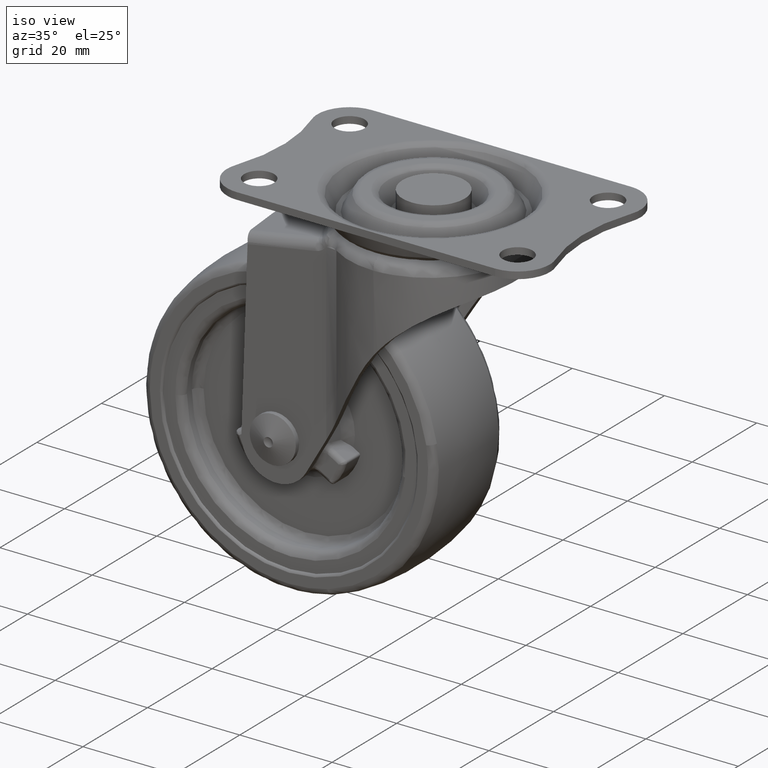
[diagram: clean part render]
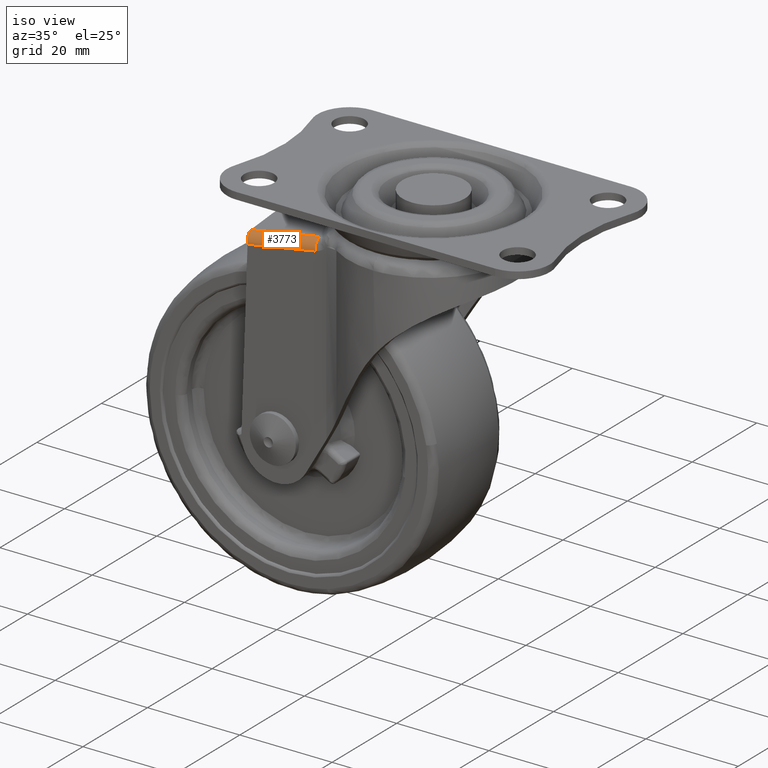
[diagram: same view with one face highlighted and labeled with its STEP entity id]
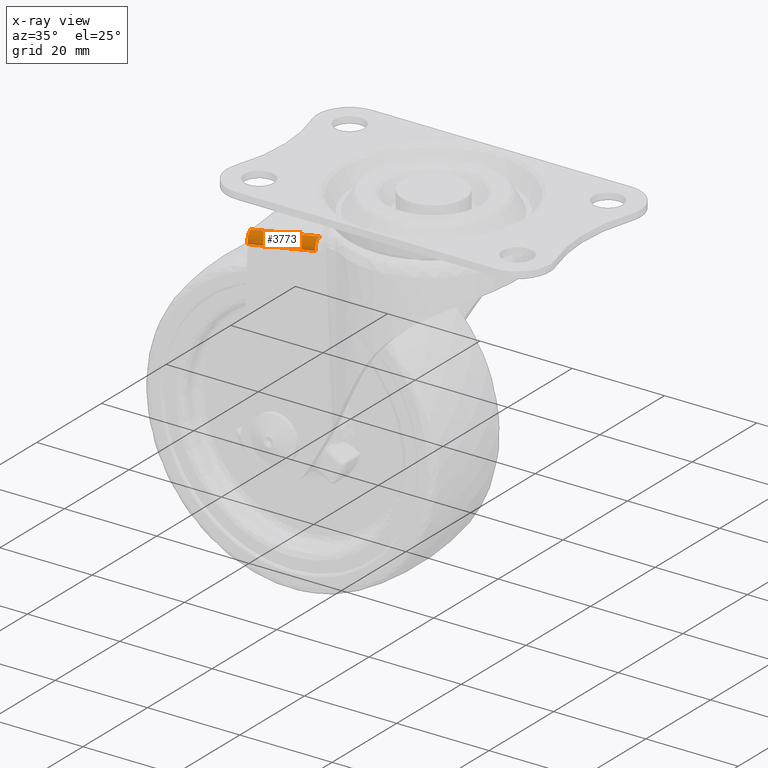
[diagram: x-ray of the same camera — body ghosted, the highlighted face saturated]
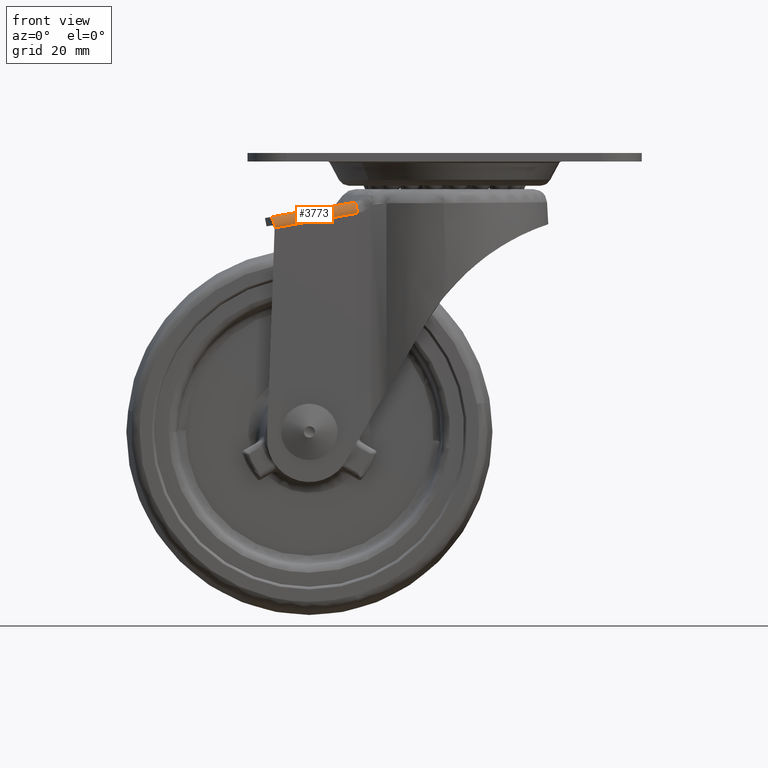
[diagram: same view with one face highlighted and labeled with its STEP entity id]
A machine part, iso view. The second image highlights one B-rep face of the part: STEP entity #3773.
The next image is the same camera in x-ray: the body ghosted, the highlighted face saturated — about 0% of this face is hidden behind the body in this view.
A second angle (front view) of the same face is appended — the face is thin or edge-on in the first view.
In plain terms, the highlighted face is a freeform B-spline surface patch.
Its self-contained STEP definition (entity closure, byte-faithful):
#3134=CARTESIAN_POINT('',(-30.212149457391099,-14.436506996430680,-11.270600476209360));
#3135=VERTEX_POINT('',#3134);
#3136=CARTESIAN_POINT('',(-30.153724038603251,-14.460125256013800,-11.364427591650800));
#3137=VERTEX_POINT('',#3136);
#3138=CARTESIAN_POINT('',(-30.212149457391099,-14.436506996430680,-11.270600476209360));
#3139=CARTESIAN_POINT('',(-30.194367742909080,-14.439559627778470,-11.278975848016231));
#3140=CARTESIAN_POINT('',(-30.164153118245650,-14.447379064873241,-11.306052982157780));
#3141=CARTESIAN_POINT('',(-30.153294869425910,-14.456163071555791,-11.344935441632201));
#3142=CARTESIAN_POINT('',(-30.153724038603251,-14.460125256013800,-11.364427591650800));
#3143=B_SPLINE_CURVE_WITH_KNOTS('',3,(#3138,#3139,#3140,#3141,#3142),.UNSPECIFIED.,.F.,.U.,(4,1,4),(0.000000941596830,0.059665452630520,0.119329963664213),.UNSPECIFIED.);
#3144=EDGE_CURVE('',#3135,#3137,#3143,.T.);
#3666=CARTESIAN_POINT('',(-15.797396065596800,-12.500016534822960,-7.205750666581940));
#3667=VERTEX_POINT('',#3666);
#3668=CARTESIAN_POINT('',(-15.450099921824901,-14.500014999999960,-9.175366209909820));
#3669=VERTEX_POINT('',#3668);
#3670=CARTESIAN_POINT('',(-15.797396065596800,-12.500016534822960,-7.205750666581940));
#3671=CARTESIAN_POINT('',(-15.797404461915059,-12.696359648721019,-7.205703048665032));
#3672=CARTESIAN_POINT('',(-15.786449024172541,-13.121821757403611,-7.267834462585011));
#3673=CARTESIAN_POINT('',(-15.741073600604659,-13.640876049066300,-7.525171438958900));
#3674=CARTESIAN_POINT('',(-15.672962304463010,-14.063000364738951,-7.911450037101370));
#3675=CARTESIAN_POINT('',(-15.580764817492010,-14.399422741320899,-8.434328297199675));
#3676=CARTESIAN_POINT('',(-15.498409410100169,-14.500310354058429,-8.901389315251729));
#3677=CARTESIAN_POINT('',(-15.450099921824901,-14.500014999999960,-9.175366209909820));
#3678=B_SPLINE_CURVE_WITH_KNOTS('',3,(#3670,#3671,#3672,#3673,#3674,#3675,#3676,#3677),.UNSPECIFIED.,.F.,.U.,(4,1,1,1,1,4),(0.000000246874779,0.589062248764040,1.276336336081664,1.718066658476741,2.307162342692105,3.141670623619144),.UNSPECIFIED.);
#3679=EDGE_CURVE('',#3667,#3669,#3678,.T.);
#3711=CARTESIAN_POINT('',(-15.420665533987970,-12.431001818042750,-7.140532341481911));
#3712=CARTESIAN_POINT('',(-31.244074546856829,-12.431001818081709,-9.930624867015578));
#3713=CARTESIAN_POINT('',(-15.433743783141539,-14.612319006819027,-7.066361867305773));
#3714=CARTESIAN_POINT('',(-31.257152796010409,-14.612319006857986,-9.856454392839437));
#3715=CARTESIAN_POINT('',(-15.055263747783460,-14.497232764143209,-9.212829895829241));
#3716=CARTESIAN_POINT('',(-30.878672760652329,-14.497232764182170,-12.002922421362911));
#3724=(BOUNDED_SURFACE()B_SPLINE_SURFACE(1,2,((#3711,#3713,#3715),(#3712,#3714,#3716)),.UNSPECIFIED.,.F.,.F.,.U.)B_SPLINE_SURFACE_WITH_KNOTS((2,2),(3,3),(0.0,16.067510357537611),(0.0,3.520084247085558),.UNSPECIFIED.)GEOMETRIC_REPRESENTATION_ITEM()RATIONAL_B_SPLINE_SURFACE(((1.0,0.675590207615660,1.0),(1.0,0.675590207615660,1.0)))REPRESENTATION_ITEM('')SURFACE());
#3725=CARTESIAN_POINT('',(-30.168149422949352,-14.500014999999999,-11.770554114201261));
#3726=VERTEX_POINT('',#3725);
#3727=CARTESIAN_POINT('',(-30.168149422949352,-14.500014999999999,-11.770554114201261));
#3728=CARTESIAN_POINT('',(-30.163310102661061,-14.500060090341380,-11.634309819210580));
#3729=CARTESIAN_POINT('',(-30.158470692849288,-14.486685096519819,-11.498063003816091));
#3730=CARTESIAN_POINT('',(-30.153724038603251,-14.460125256013800,-11.364427591650800));
#3731=B_SPLINE_CURVE_WITH_KNOTS('',3,(#3727,#3728,#3729,#3730),.UNSPECIFIED.,.F.,.U.,(4,4),(4.826568E-009,0.409001922039847),.UNSPECIFIED.);
#3732=EDGE_CURVE('',#3726,#3137,#3731,.T.);
#3733=ORIENTED_EDGE('',*,*,#3732,.F.);
#3734=CARTESIAN_POINT('',(-15.450099921824901,-14.500014999999960,-9.175366209909820));
#3735=CARTESIAN_POINT('',(-30.168149422949352,-14.500014999999999,-11.770554114201261));
#3736=QUASI_UNIFORM_CURVE('',1,(#3734,#3735),.UNSPECIFIED.,.F.,.U.);
#3737=EDGE_CURVE('',#3669,#3726,#3736,.T.);
#3738=ORIENTED_EDGE('',*,*,#3737,.F.);
#3739=ORIENTED_EDGE('',*,*,#3679,.F.);
#3740=CARTESIAN_POINT('',(-30.858344562454050,-12.500016196939679,-9.861400890232220));
#3741=VERTEX_POINT('',#3740);
#3742=CARTESIAN_POINT('',(-30.858344562454050,-12.500016196939679,-9.861400890232220));
#3743=CARTESIAN_POINT('',(-15.797396065596800,-12.500016534822960,-7.205750666581940));
#3744=QUASI_UNIFORM_CURVE('',1,(#3742,#3743),.UNSPECIFIED.,.F.,.U.);
#3745=EDGE_CURVE('',#3741,#3667,#3744,.T.);
#3746=ORIENTED_EDGE('',*,*,#3745,.F.);
#3747=CARTESIAN_POINT('',(-30.212149457391099,-14.436506996430699,-11.270600476209360));
#3748=CARTESIAN_POINT('',(-30.236980760476062,-14.408501695049781,-11.164841311337440));
#3749=CARTESIAN_POINT('',(-30.262940398237230,-14.371885668749490,-11.063366908852410));
#3750=CARTESIAN_POINT('',(-30.316920014841340,-14.282281619720100,-10.868541369774579));
#3751=CARTESIAN_POINT('',(-30.344940688390270,-14.229291594517610,-10.775191349450539));
#3752=CARTESIAN_POINT('',(-30.402993999263170,-14.106387559233159,-10.596855791280991));
#3753=CARTESIAN_POINT('',(-30.432257036031618,-14.038090273377900,-10.514241922793440));
#3754=CARTESIAN_POINT('',(-30.490952385564370,-13.888821477538791,-10.361875565269621));
#3755=CARTESIAN_POINT('',(-30.520411373891410,-13.807792936798309,-10.292045233375930));
#3756=CARTESIAN_POINT('',(-30.579425273903180,-13.632547529157980,-10.165436076527319));
#3757=CARTESIAN_POINT('',(-30.608266000542230,-13.540428621415931,-10.110206729026141));
#3758=CARTESIAN_POINT('',(-30.664290377455249,-13.348447196284960,-10.015654393971650));
#3759=CARTESIAN_POINT('',(-30.691521176433259,-13.248444731640710,-9.976233018041842));
#3760=CARTESIAN_POINT('',(-30.731087911950670,-13.092224731888921,-9.929230876192797));
#3761=CARTESIAN_POINT('',(-30.743980000806921,-13.039423783149189,-9.915705597354604));
#3762=CARTESIAN_POINT('',(-30.768919372265760,-12.933436531526890,-9.893118288610218));
#3763=CARTESIAN_POINT('',(-30.781007230270969,-12.880090931004730,-9.884007281741994));
#3764=CARTESIAN_POINT('',(-30.816129234269990,-12.719008594869910,-9.863144850771466));
#3765=CARTESIAN_POINT('',(-30.838028559041941,-12.610233377083871,-9.857818699159573));
#3766=CARTESIAN_POINT('',(-30.858344562454050,-12.500016196939679,-9.861400890232220));
#3767=B_SPLINE_CURVE_WITH_KNOTS('',3,(#3747,#3748,#3749,#3750,#3751,#3752,#3753,#3754,#3755,#3756,#3757,#3758,#3759,#3760,#3761,#3762,#3763,#3764,#3765,#3766),.UNSPECIFIED.,.F.,.U.,(4,2,2,2,2,2,2,2,2,4),(0.0,0.125000000000000,0.250000000000000,0.375000000000000,0.500000000000000,0.625000000000000,0.750000000000000,0.812500000000000,0.874999999999999,1.0),.UNSPECIFIED.);
#3768=EDGE_CURVE('',#3135,#3741,#3767,.T.);
#3769=ORIENTED_EDGE('',*,*,#3768,.F.);
#3770=ORIENTED_EDGE('',*,*,#3144,.T.);
#3771=EDGE_LOOP('',(#3733,#3738,#3739,#3746,#3769,#3770));
#3772=FACE_OUTER_BOUND('',#3771,.T.);
#3773=ADVANCED_FACE('',(#3772),#3724,.T.);